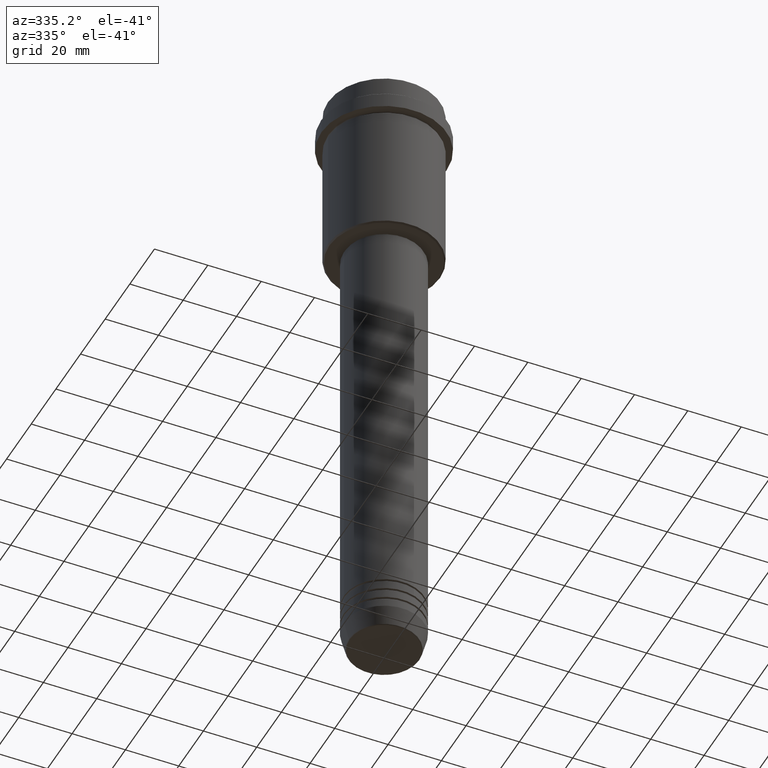
[diagram: clean part render]
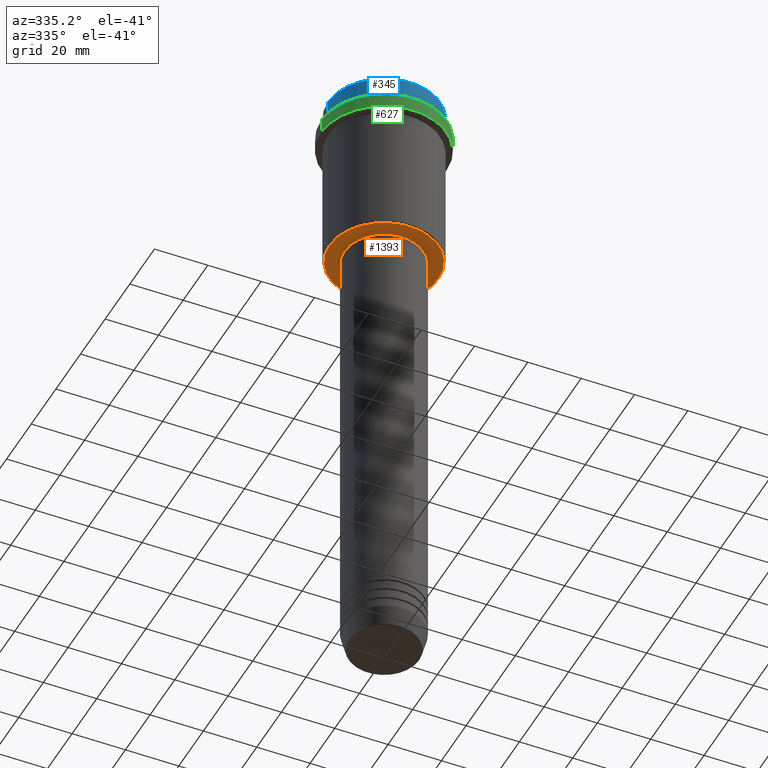
[diagram: same view with three faces highlighted in distinct colors, each labeled with its STEP entity id]
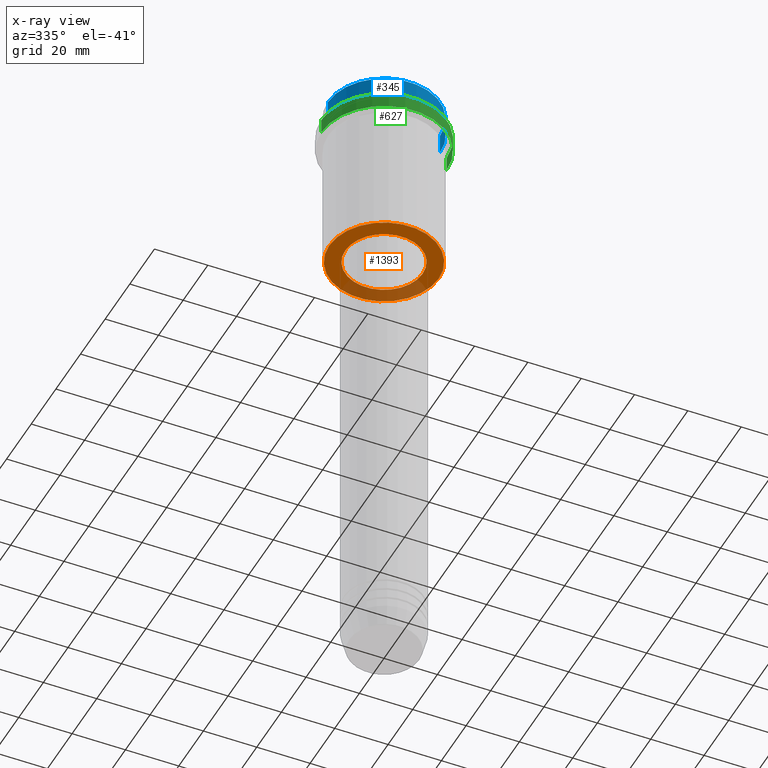
[diagram: x-ray of the same camera — body ghosted, the three highlighted faces saturated]
A machine part, auxiliary view with three faces highlighted in distinct colors.
The next image is the same camera in x-ray (body ghosted, the three faces saturated) — at least one of them is partly hidden behind the body in this view.
Their STEP definitions:

[orange] entity #1393 — the highlighted planar face has unit normal (0, 0, -1).
#81 = FACE_BOUND ( 'NONE', #669, .T. ) ;
#102 = AXIS2_PLACEMENT_3D ( 'NONE', #1389, #1375, #276 ) ;
#160 = AXIS2_PLACEMENT_3D ( 'NONE', #1043, #405, #1195 ) ;
#205 = CARTESIAN_POINT ( 'NONE',  ( 0.000000000000000000, 0.000000000000000000, -65.00000000000000000 ) ) ;
#210 = AXIS2_PLACEMENT_3D ( 'NONE', #205, #752, #648 ) ;
#240 = ORIENTED_EDGE ( 'NONE', *, *, #1342, .T. ) ;
#276 = DIRECTION ( 'NONE',  ( -1.000000000000000000, 0.000000000000000000, -0.000000000000000000 ) ) ;
#331 = EDGE_CURVE ( 'NONE', #1040, #1384, #988, .T. ) ;
#385 = CARTESIAN_POINT ( 'NONE',  ( 20.50000000000001776, 0.000000000000000000, -65.00000000000000000 ) ) ;
#388 = CIRCLE ( 'NONE', #210, 20.50000000000001776 ) ;
#394 = ORIENTED_EDGE ( 'NONE', *, *, #331, .T. ) ;
#395 = CARTESIAN_POINT ( 'NONE',  ( 0.000000000000000000, 0.000000000000000000, -65.00000000000000000 ) ) ;
#401 = FACE_OUTER_BOUND ( 'NONE', #602, .T. ) ;
#405 = DIRECTION ( 'NONE',  ( -0.000000000000000000, -0.000000000000000000, 1.000000000000000000 ) ) ;
#421 = AXIS2_PLACEMENT_3D ( 'NONE', #395, #526, #821 ) ;
#447 = EDGE_CURVE ( 'NONE', #1384, #1040, #622, .T. ) ;
#455 = EDGE_CURVE ( 'NONE', #1397, #524, #388, .T. ) ;
#515 = DIRECTION ( 'NONE',  ( -0.000000000000000000, -0.000000000000000000, 1.000000000000000000 ) ) ;
#524 = VERTEX_POINT ( 'NONE', #385 ) ;
#526 = DIRECTION ( 'NONE',  ( 0.000000000000000000, 0.000000000000000000, -1.000000000000000000 ) ) ;
#602 = EDGE_LOOP ( 'NONE', ( #240, #643 ) ) ;
#622 = CIRCLE ( 'NONE', #160, 14.49999999999999467 ) ;
#643 = ORIENTED_EDGE ( 'NONE', *, *, #455, .T. ) ;
#648 = DIRECTION ( 'NONE',  ( -1.000000000000000000, 0.000000000000000000, 0.000000000000000000 ) ) ;
#669 = EDGE_LOOP ( 'NONE', ( #394, #865 ) ) ;
#716 = CIRCLE ( 'NONE', #421, 20.50000000000001776 ) ;
#736 = DIRECTION ( 'NONE',  ( 1.000000000000000000, 0.000000000000000000, 0.000000000000000000 ) ) ;
#752 = DIRECTION ( 'NONE',  ( 0.000000000000000000, 0.000000000000000000, -1.000000000000000000 ) ) ;
#757 = CARTESIAN_POINT ( 'NONE',  ( 14.49999999999999467, 0.000000000000000000, -65.00000000000000000 ) ) ;
#821 = DIRECTION ( 'NONE',  ( -1.000000000000000000, 0.000000000000000000, 0.000000000000000000 ) ) ;
#865 = ORIENTED_EDGE ( 'NONE', *, *, #447, .T. ) ;
#956 = CARTESIAN_POINT ( 'NONE',  ( -14.49999999999999467, 1.775737858763661620E-15, -65.00000000000000000 ) ) ;
#967 = AXIS2_PLACEMENT_3D ( 'NONE', #1392, #515, #736 ) ;
#988 = CIRCLE ( 'NONE', #967, 14.49999999999999467 ) ;
#1040 = VERTEX_POINT ( 'NONE', #757 ) ;
#1043 = CARTESIAN_POINT ( 'NONE',  ( 0.000000000000000000, 0.000000000000000000, -65.00000000000000000 ) ) ;
#1167 = CARTESIAN_POINT ( 'NONE',  ( -20.50000000000001776, 2.541142108230759057E-15, -65.00000000000000000 ) ) ;
#1195 = DIRECTION ( 'NONE',  ( 1.000000000000000000, 0.000000000000000000, 0.000000000000000000 ) ) ;
#1342 = EDGE_CURVE ( 'NONE', #524, #1397, #716, .T. ) ;
#1375 = DIRECTION ( 'NONE',  ( 0.000000000000000000, 0.000000000000000000, -1.000000000000000000 ) ) ;
#1382 = PLANE ( 'NONE',  #102 ) ;
#1384 = VERTEX_POINT ( 'NONE', #956 ) ;
#1389 = CARTESIAN_POINT ( 'NONE',  ( 0.000000000000000000, 21.00000000000000000, -65.00000000000000000 ) ) ;
#1392 = CARTESIAN_POINT ( 'NONE',  ( 0.000000000000000000, 0.000000000000000000, -65.00000000000000000 ) ) ;
#1393 = ADVANCED_FACE ( 'NONE', ( #401, #81 ), #1382, .T. ) ;
#1397 = VERTEX_POINT ( 'NONE', #1167 ) ;

[blue] entity #345 — the highlighted cylindrical surface (partial cylindrical patch) has radius 21 mm, axis along (-0, -0, 1).
#52 = DIRECTION ( 'NONE',  ( -0.000000000000000000, -0.000000000000000000, 1.000000000000000000 ) ) ;
#95 = VERTEX_POINT ( 'NONE', #310 ) ;
#151 = ORIENTED_EDGE ( 'NONE', *, *, #802, .T. ) ;
#170 = EDGE_CURVE ( 'NONE', #1400, #947, #775, .T. ) ;
#177 = CARTESIAN_POINT ( 'NONE',  ( -21.00000000000000000, 2.571758278209441661E-15, -0.5000000000000663913 ) ) ;
#193 = CYLINDRICAL_SURFACE ( 'NONE', #357, 21.00000000000000000 ) ;
#212 = AXIS2_PLACEMENT_3D ( 'NONE', #788, #52, #1246 ) ;
#310 = CARTESIAN_POINT ( 'NONE',  ( -21.00000000000000000, 2.571758278209441661E-15, -7.999999999999998224 ) ) ;
#345 = ADVANCED_FACE ( 'NONE', ( #1279 ), #193, .T. ) ;
#357 = AXIS2_PLACEMENT_3D ( 'NONE', #423, #623, #1379 ) ;
#402 = LINE ( 'NONE', #839, #1005 ) ;
#408 = CARTESIAN_POINT ( 'NONE',  ( 21.00000000000000000, 0.000000000000000000, -0.5000000000000663913 ) ) ;
#423 = CARTESIAN_POINT ( 'NONE',  ( 0.000000000000000000, 0.000000000000000000, 0.000000000000000000 ) ) ;
#437 = EDGE_CURVE ( 'NONE', #95, #947, #858, .T. ) ;
#477 = VECTOR ( 'NONE', #728, 1000.000000000000000 ) ;
#503 = EDGE_LOOP ( 'NONE', ( #527, #151, #1159, #829 ) ) ;
#527 = ORIENTED_EDGE ( 'NONE', *, *, #437, .F. ) ;
#553 = AXIS2_PLACEMENT_3D ( 'NONE', #1234, #1004, #714 ) ;
#565 = EDGE_CURVE ( 'NONE', #567, #1400, #402, .T. ) ;
#567 = VERTEX_POINT ( 'NONE', #709 ) ;
#605 = CARTESIAN_POINT ( 'NONE',  ( -21.00000000000000000, 2.571758278209441661E-15, 0.000000000000000000 ) ) ;
#623 = DIRECTION ( 'NONE',  ( -0.000000000000000000, -0.000000000000000000, 1.000000000000000000 ) ) ;
#700 = DIRECTION ( 'NONE',  ( -0.000000000000000000, -0.000000000000000000, 1.000000000000000000 ) ) ;
#709 = CARTESIAN_POINT ( 'NONE',  ( 21.00000000000000000, 0.000000000000000000, -7.999999999999998224 ) ) ;
#714 = DIRECTION ( 'NONE',  ( 1.000000000000000000, 0.000000000000000000, 0.000000000000000000 ) ) ;
#728 = DIRECTION ( 'NONE',  ( -0.000000000000000000, -0.000000000000000000, 1.000000000000000000 ) ) ;
#775 = CIRCLE ( 'NONE', #553, 21.00000000000000000 ) ;
#788 = CARTESIAN_POINT ( 'NONE',  ( 0.000000000000000000, 0.000000000000000000, -7.999999999999998224 ) ) ;
#802 = EDGE_CURVE ( 'NONE', #95, #567, #942, .T. ) ;
#829 = ORIENTED_EDGE ( 'NONE', *, *, #170, .T. ) ;
#839 = CARTESIAN_POINT ( 'NONE',  ( 21.00000000000000000, 0.000000000000000000, 0.000000000000000000 ) ) ;
#858 = LINE ( 'NONE', #605, #477 ) ;
#942 = CIRCLE ( 'NONE', #212, 21.00000000000000000 ) ;
#947 = VERTEX_POINT ( 'NONE', #177 ) ;
#1004 = DIRECTION ( 'NONE',  ( 0.000000000000000000, 0.000000000000000000, -1.000000000000000000 ) ) ;
#1005 = VECTOR ( 'NONE', #700, 1000.000000000000000 ) ;
#1159 = ORIENTED_EDGE ( 'NONE', *, *, #565, .T. ) ;
#1234 = CARTESIAN_POINT ( 'NONE',  ( 0.000000000000000000, 0.000000000000000000, -0.5000000000000663913 ) ) ;
#1246 = DIRECTION ( 'NONE',  ( 1.000000000000000000, 0.000000000000000000, 0.000000000000000000 ) ) ;
#1279 = FACE_OUTER_BOUND ( 'NONE', #503, .T. ) ;
#1379 = DIRECTION ( 'NONE',  ( 1.000000000000000000, 0.000000000000000000, 0.000000000000000000 ) ) ;
#1400 = VERTEX_POINT ( 'NONE', #408 ) ;

[green] entity #627 — the highlighted cylindrical surface (partial cylindrical patch) has radius 23.5 mm, axis along (-0, -0, 1).
#18 = EDGE_CURVE ( 'NONE', #803, #808, #933, .T. ) ;
#56 = EDGE_LOOP ( 'NONE', ( #617, #116, #1307, #940 ) ) ;
#68 = LINE ( 'NONE', #284, #913 ) ;
#87 = DIRECTION ( 'NONE',  ( -0.000000000000000000, -0.000000000000000000, 1.000000000000000000 ) ) ;
#116 = ORIENTED_EDGE ( 'NONE', *, *, #18, .T. ) ;
#121 = AXIS2_PLACEMENT_3D ( 'NONE', #288, #732, #1285 ) ;
#137 = VECTOR ( 'NONE', #472, 1000.000000000000000 ) ;
#235 = CIRCLE ( 'NONE', #121, 23.50000000000000000 ) ;
#284 = CARTESIAN_POINT ( 'NONE',  ( -23.50000000000000000, 2.877919977996280320E-15, 0.000000000000000000 ) ) ;
#288 = CARTESIAN_POINT ( 'NONE',  ( 0.000000000000000000, 0.000000000000000000, -9.499999999999971578 ) ) ;
#316 = AXIS2_PLACEMENT_3D ( 'NONE', #1412, #87, #319 ) ;
#319 = DIRECTION ( 'NONE',  ( 1.000000000000000000, 0.000000000000000000, 0.000000000000000000 ) ) ;
#465 = VERTEX_POINT ( 'NONE', #726 ) ;
#472 = DIRECTION ( 'NONE',  ( -0.000000000000000000, -0.000000000000000000, 1.000000000000000000 ) ) ;
#532 = AXIS2_PLACEMENT_3D ( 'NONE', #889, #867, #1304 ) ;
#533 = FACE_OUTER_BOUND ( 'NONE', #56, .T. ) ;
#574 = CARTESIAN_POINT ( 'NONE',  ( 23.50000000000000000, 0.000000000000000000, -9.499999999999971578 ) ) ;
#598 = CARTESIAN_POINT ( 'NONE',  ( 23.50000000000000000, 0.000000000000000000, 0.000000000000000000 ) ) ;
#617 = ORIENTED_EDGE ( 'NONE', *, *, #938, .F. ) ;
#627 = ADVANCED_FACE ( 'NONE', ( #533 ), #651, .T. ) ;
#651 = CYLINDRICAL_SURFACE ( 'NONE', #532, 23.50000000000000000 ) ;
#726 = CARTESIAN_POINT ( 'NONE',  ( -23.50000000000000000, 2.877919977996280320E-15, -9.499999999999971578 ) ) ;
#732 = DIRECTION ( 'NONE',  ( 0.000000000000000000, 0.000000000000000000, -1.000000000000000000 ) ) ;
#803 = VERTEX_POINT ( 'NONE', #1142 ) ;
#808 = VERTEX_POINT ( 'NONE', #1017 ) ;
#819 = EDGE_CURVE ( 'NONE', #808, #1198, #916, .T. ) ;
#867 = DIRECTION ( 'NONE',  ( -0.000000000000000000, -0.000000000000000000, 1.000000000000000000 ) ) ;
#889 = CARTESIAN_POINT ( 'NONE',  ( 0.000000000000000000, 0.000000000000000000, 0.000000000000000000 ) ) ;
#913 = VECTOR ( 'NONE', #1169, 1000.000000000000000 ) ;
#916 = LINE ( 'NONE', #598, #137 ) ;
#933 = CIRCLE ( 'NONE', #316, 23.50000000000000355 ) ;
#938 = EDGE_CURVE ( 'NONE', #803, #465, #68, .T. ) ;
#940 = ORIENTED_EDGE ( 'NONE', *, *, #1336, .T. ) ;
#1017 = CARTESIAN_POINT ( 'NONE',  ( 23.50000000000000355, 0.000000000000000000, -15.00000000000000000 ) ) ;
#1142 = CARTESIAN_POINT ( 'NONE',  ( -23.50000000000000711, 2.877919977996281109E-15, -15.00000000000000000 ) ) ;
#1169 = DIRECTION ( 'NONE',  ( -0.000000000000000000, -0.000000000000000000, 1.000000000000000000 ) ) ;
#1198 = VERTEX_POINT ( 'NONE', #574 ) ;
#1285 = DIRECTION ( 'NONE',  ( 1.000000000000000000, 0.000000000000000000, 0.000000000000000000 ) ) ;
#1304 = DIRECTION ( 'NONE',  ( 1.000000000000000000, 0.000000000000000000, 0.000000000000000000 ) ) ;
#1307 = ORIENTED_EDGE ( 'NONE', *, *, #819, .T. ) ;
#1336 = EDGE_CURVE ( 'NONE', #1198, #465, #235, .T. ) ;
#1412 = CARTESIAN_POINT ( 'NONE',  ( 0.000000000000000000, 0.000000000000000000, -15.00000000000000000 ) ) ;